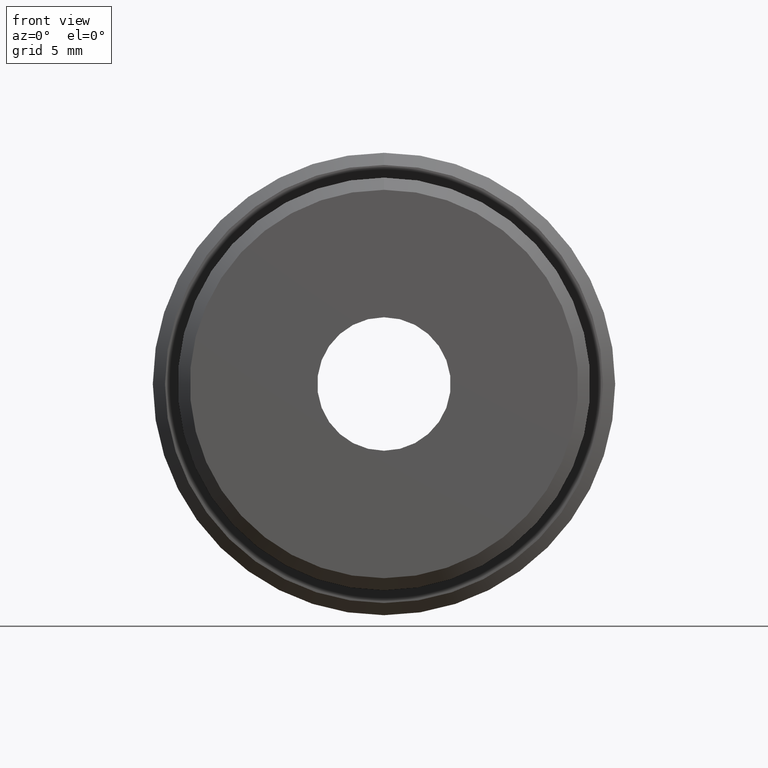
[diagram: clean part render]
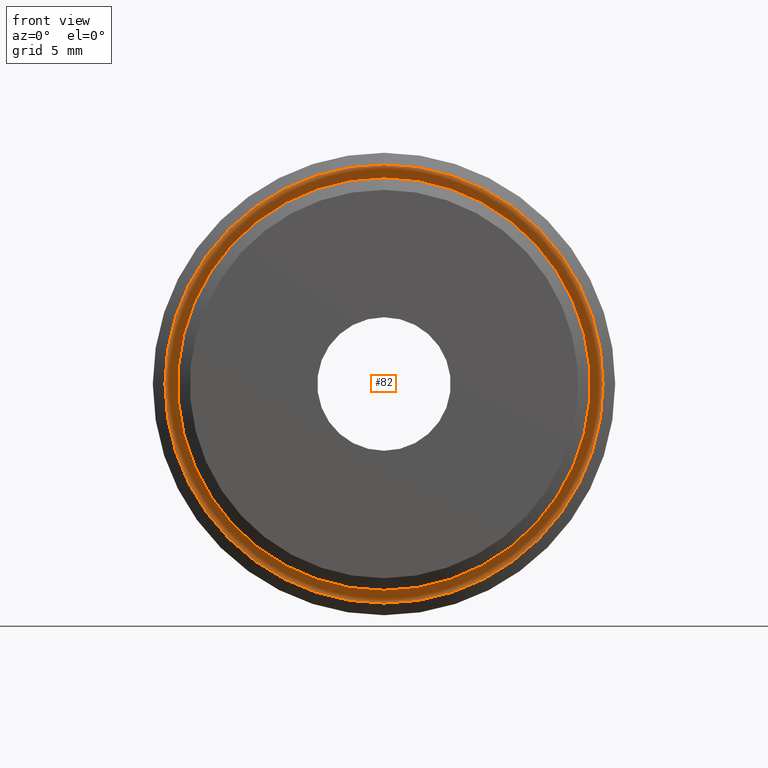
[diagram: same view with one face highlighted and labeled with its STEP entity id]
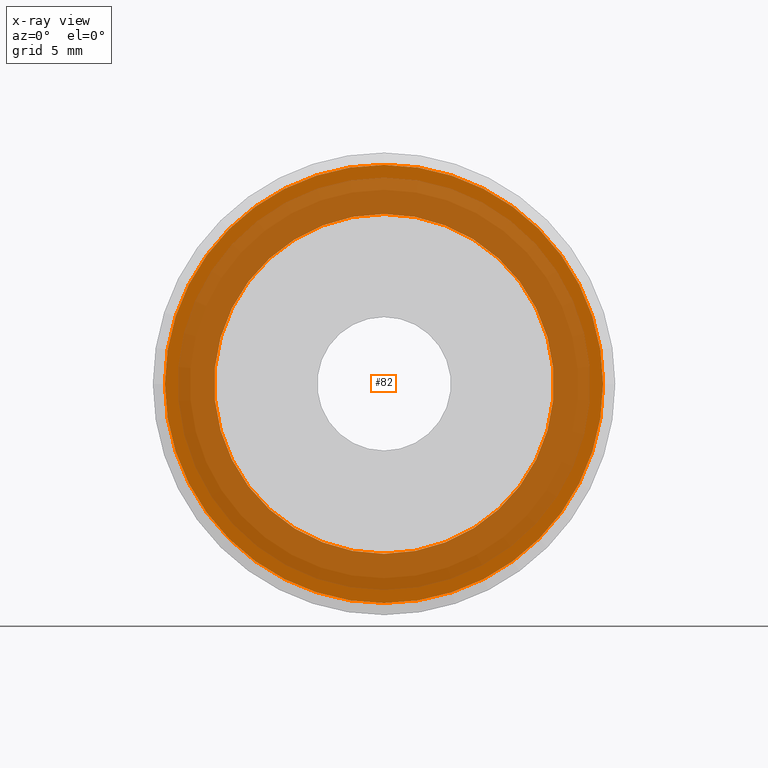
[diagram: x-ray of the same camera — body ghosted, the highlighted face saturated]
A machine part, front view. The second image highlights one B-rep face of the part: STEP entity #82.
The next image is the same camera in x-ray: the body ghosted, the highlighted face saturated — about 72% of this face is hidden behind the body in this view.
In plain terms, the highlighted planar face has unit normal (0, -1, -0).
Its self-contained STEP definition (entity closure, byte-faithful):
#82 = ADVANCED_FACE ( 'NONE', ( #448, #225 ), #191, .T. ) ;
#97 = CARTESIAN_POINT ( 'NONE',  ( 0.0000000000000000000, 5.000000000000000000, 0.0000000000000000000 ) ) ;
#102 = DIRECTION ( 'NONE',  ( -0.0000000000000000000, -1.000000000000000000, -0.0000000000000000000 ) ) ;
#131 = DIRECTION ( 'NONE',  ( 0.0000000000000000000, 0.0000000000000000000, -1.000000000000000000 ) ) ;
#142 = EDGE_CURVE ( 'NONE', #739, #1108, #743, .T. ) ;
#168 = CARTESIAN_POINT ( 'NONE',  ( 0.0000000000000000000, 5.000000000000000000, 0.0000000000000000000 ) ) ;
#172 = CIRCLE ( 'NONE', #769, 7.000000000000000000 ) ;
#191 = PLANE ( 'NONE',  #751 ) ;
#208 = CARTESIAN_POINT ( 'NONE',  ( 0.0000000000000000000, 5.000000000000000900, 0.0000000000000000000 ) ) ;
#225 = FACE_BOUND ( 'NONE', #777, .T. ) ;
#242 = CARTESIAN_POINT ( 'NONE',  ( 7.000000000000000000, 5.000000000000000900, 0.0000000000000000000 ) ) ;
#250 = VERTEX_POINT ( 'NONE', #981 ) ;
#351 = CIRCLE ( 'NONE', #462, 9.025000000000000400 ) ;
#377 = EDGE_CURVE ( 'NONE', #472, #250, #172, .T. ) ;
#448 = FACE_OUTER_BOUND ( 'NONE', #584, .T. ) ;
#455 = DIRECTION ( 'NONE',  ( -0.0000000000000000000, -1.000000000000000000, -0.0000000000000000000 ) ) ;
#458 = DIRECTION ( 'NONE',  ( 0.0000000000000000000, 0.0000000000000000000, -1.000000000000000000 ) ) ;
#462 = AXIS2_PLACEMENT_3D ( 'NONE', #1050, #494, #1016 ) ;
#472 = VERTEX_POINT ( 'NONE', #756 ) ;
#494 = DIRECTION ( 'NONE',  ( -0.0000000000000000000, -1.000000000000000000, -0.0000000000000000000 ) ) ;
#500 = DIRECTION ( 'NONE',  ( 0.0000000000000000000, -1.000000000000000000, -0.0000000000000000000 ) ) ;
#512 = CIRCLE ( 'NONE', #576, 7.000000000000000000 ) ;
#576 = AXIS2_PLACEMENT_3D ( 'NONE', #168, #102, #1035 ) ;
#584 = EDGE_LOOP ( 'NONE', ( #1038, #703 ) ) ;
#598 = CARTESIAN_POINT ( 'NONE',  ( 1.135859906209170000E-015, 5.000000000000000900, -9.025000000000000400 ) ) ;
#692 = DIRECTION ( 'NONE',  ( 0.0000000000000000000, 0.0000000000000000000, -1.000000000000000000 ) ) ;
#703 = ORIENTED_EDGE ( 'NONE', *, *, #1094, .T. ) ;
#739 = VERTEX_POINT ( 'NONE', #810 ) ;
#743 = CIRCLE ( 'NONE', #793, 9.025000000000000400 ) ;
#751 = AXIS2_PLACEMENT_3D ( 'NONE', #242, #500, #131 ) ;
#756 = CARTESIAN_POINT ( 'NONE',  ( 0.0000000000000000000, 5.000000000000000000, -7.000000000000000000 ) ) ;
#761 = ORIENTED_EDGE ( 'NONE', *, *, #377, .F. ) ;
#769 = AXIS2_PLACEMENT_3D ( 'NONE', #97, #815, #692 ) ;
#777 = EDGE_LOOP ( 'NONE', ( #761, #1020 ) ) ;
#793 = AXIS2_PLACEMENT_3D ( 'NONE', #208, #455, #458 ) ;
#810 = CARTESIAN_POINT ( 'NONE',  ( 0.0000000000000000000, 5.000000000000000900, 9.025000000000000400 ) ) ;
#815 = DIRECTION ( 'NONE',  ( -0.0000000000000000000, -1.000000000000000000, -0.0000000000000000000 ) ) ;
#981 = CARTESIAN_POINT ( 'NONE',  ( 8.572527594031473200E-016, 5.000000000000000000, 7.000000000000000000 ) ) ;
#1016 = DIRECTION ( 'NONE',  ( 0.0000000000000000000, 0.0000000000000000000, -1.000000000000000000 ) ) ;
#1020 = ORIENTED_EDGE ( 'NONE', *, *, #1021, .F. ) ;
#1021 = EDGE_CURVE ( 'NONE', #250, #472, #512, .T. ) ;
#1035 = DIRECTION ( 'NONE',  ( 0.0000000000000000000, 0.0000000000000000000, -1.000000000000000000 ) ) ;
#1038 = ORIENTED_EDGE ( 'NONE', *, *, #142, .T. ) ;
#1050 = CARTESIAN_POINT ( 'NONE',  ( 0.0000000000000000000, 5.000000000000000900, 0.0000000000000000000 ) ) ;
#1094 = EDGE_CURVE ( 'NONE', #1108, #739, #351, .T. ) ;
#1108 = VERTEX_POINT ( 'NONE', #598 ) ;